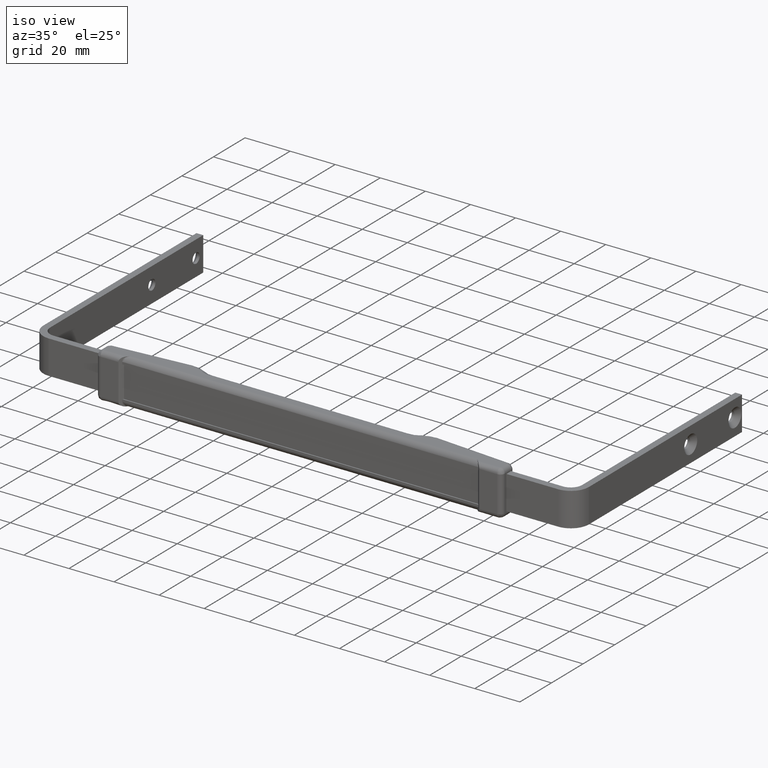
[diagram: clean part render]
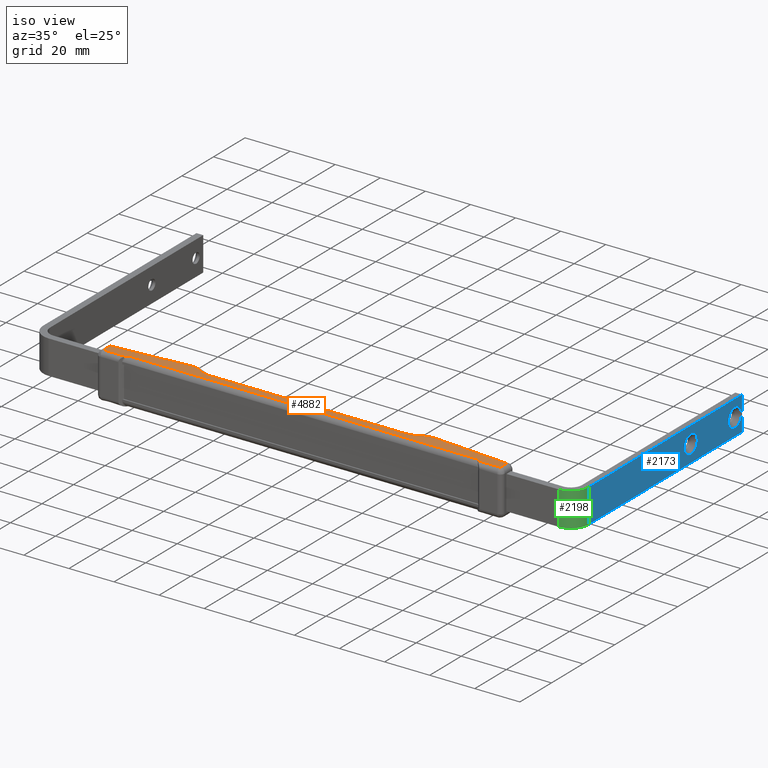
[diagram: same view with three faces highlighted in distinct colors, each labeled with its STEP entity id]
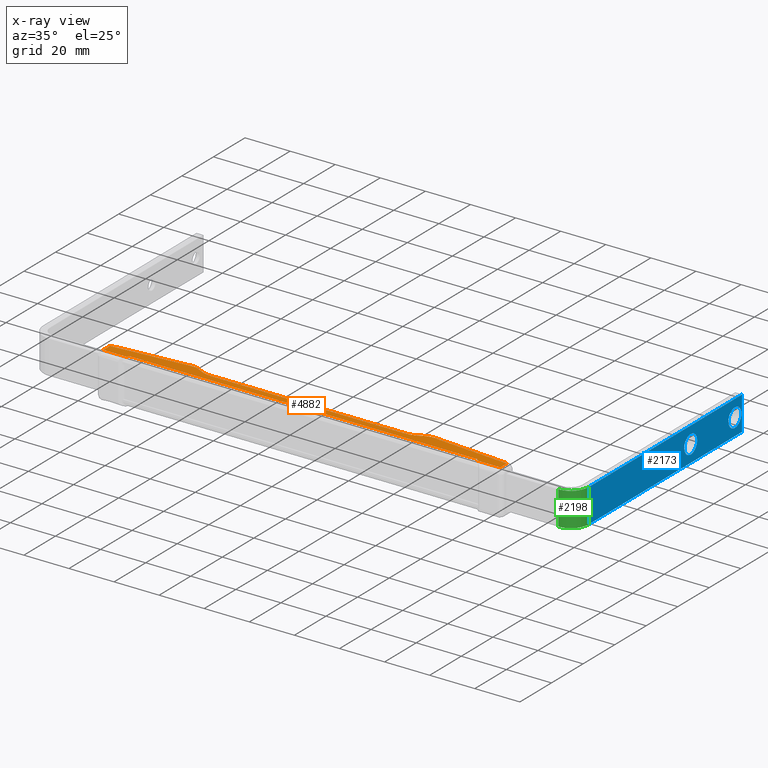
[diagram: x-ray of the same camera — body ghosted, the three highlighted faces saturated]
A machine part, iso view with three faces highlighted in distinct colors.
The next image is the same camera in x-ray (body ghosted, the three faces saturated) — at least one of them is partly hidden behind the body in this view.
Their STEP definitions:

[orange] entity #4882 — the highlighted face is a freeform B-spline surface patch.
#2739=CARTESIAN_POINT('',(88.0,10.0,1.0));
#2740=VERTEX_POINT('',#2739);
#2846=CARTESIAN_POINT('',(88.0,10.0,-3.158406513341575));
#2847=VERTEX_POINT('',#2846);
#2861=CARTESIAN_POINT('',(88.0,10.0,1.0));
#2862=CARTESIAN_POINT('',(88.0,10.0,-3.158406513341575));
#2863=QUASI_UNIFORM_CURVE('',1,(#2861,#2862),.UNSPECIFIED.,.F.,.U.);
#2864=EDGE_CURVE('',#2740,#2847,#2863,.T.);
#3303=CARTESIAN_POINT('',(-88.0,10.0,1.0));
#3304=VERTEX_POINT('',#3303);
#3405=CARTESIAN_POINT('',(-88.0,10.0,-3.158406513341575));
#3406=VERTEX_POINT('',#3405);
#3428=CARTESIAN_POINT('',(-88.0,10.0,-3.158406513341575));
#3429=CARTESIAN_POINT('',(-88.0,10.0,1.0));
#3430=QUASI_UNIFORM_CURVE('',1,(#3428,#3429),.UNSPECIFIED.,.F.,.U.);
#3431=EDGE_CURVE('',#3406,#3304,#3430,.T.);
#3580=CARTESIAN_POINT('',(-78.0,10.0,1.0));
#3581=VERTEX_POINT('',#3580);
#3582=CARTESIAN_POINT('',(-88.0,10.0,1.0));
#3583=CARTESIAN_POINT('',(-78.0,10.0,1.0));
#3584=QUASI_UNIFORM_CURVE('',1,(#3582,#3583),.UNSPECIFIED.,.F.,.U.);
#3585=EDGE_CURVE('',#3304,#3581,#3584,.T.);
#3633=CARTESIAN_POINT('',(78.0,10.0,1.0));
#3634=VERTEX_POINT('',#3633);
#3635=CARTESIAN_POINT('',(78.0,10.0,1.0));
#3636=CARTESIAN_POINT('',(88.0,10.0,1.0));
#3637=QUASI_UNIFORM_CURVE('',1,(#3635,#3636),.UNSPECIFIED.,.F.,.U.);
#3638=EDGE_CURVE('',#3634,#2740,#3637,.T.);
#4098=CARTESIAN_POINT('',(-54.054979128314798,10.0,-5.972647401706170));
#4099=VERTEX_POINT('',#4098);
#4100=CARTESIAN_POINT('',(-54.054979128314798,10.0,-5.972647401706170));
#4101=CARTESIAN_POINT('',(-88.0,10.0,-3.158406513341575));
#4102=QUASI_UNIFORM_CURVE('',1,(#4100,#4101),.UNSPECIFIED.,.F.,.U.);
#4103=EDGE_CURVE('',#4099,#3406,#4102,.T.);
#4138=CARTESIAN_POINT('',(-49.179738498858903,10.0,-4.800000000000000));
#4139=VERTEX_POINT('',#4138);
#4169=CARTESIAN_POINT('',(-49.179738498858903,10.0,-4.800000000000000));
#4170=CARTESIAN_POINT('',(-51.423861395643890,10.0,-6.190782459963266));
#4171=CARTESIAN_POINT('',(-54.054979128314798,10.0,-5.972647401706174));
#4179=(BOUNDED_CURVE()B_SPLINE_CURVE(2,(#4169,#4170,#4171),.UNSPECIFIED.,.F.,.U.)CURVE()GEOMETRIC_REPRESENTATION_ITEM()QUASI_UNIFORM_CURVE()RATIONAL_B_SPLINE_CURVE((1.0,0.949623541520563,1.0))REPRESENTATION_ITEM(''));
#4180=EDGE_CURVE('',#4139,#4099,#4179,.T.);
#4202=CARTESIAN_POINT('',(-42.858346247147253,10.0,-3.0));
#4203=VERTEX_POINT('',#4202);
#4233=CARTESIAN_POINT('',(-42.858346247147253,10.0,-2.999999999999999));
#4234=CARTESIAN_POINT('',(-46.275315031856259,10.0,-3.000000000000000));
#4235=CARTESIAN_POINT('',(-49.179738498858903,10.0,-4.800000000000003));
#4243=(BOUNDED_CURVE()B_SPLINE_CURVE(2,(#4233,#4234,#4235),.UNSPECIFIED.,.F.,.U.)CURVE()GEOMETRIC_REPRESENTATION_ITEM()QUASI_UNIFORM_CURVE()RATIONAL_B_SPLINE_CURVE((1.0,0.961769203083567,1.0))REPRESENTATION_ITEM(''));
#4244=EDGE_CURVE('',#4203,#4139,#4243,.T.);
#4263=CARTESIAN_POINT('',(42.858346247147253,10.0,-3.0));
#4264=VERTEX_POINT('',#4263);
#4286=CARTESIAN_POINT('',(42.858346247147253,10.0,-3.0));
#4287=CARTESIAN_POINT('',(-42.858346247147253,10.0,-3.0));
#4288=QUASI_UNIFORM_CURVE('',1,(#4286,#4287),.UNSPECIFIED.,.F.,.U.);
#4289=EDGE_CURVE('',#4264,#4203,#4288,.T.);
#4311=CARTESIAN_POINT('',(49.179738498858903,10.0,-4.800000000000000));
#4312=VERTEX_POINT('',#4311);
#4342=CARTESIAN_POINT('',(49.179738498858903,10.0,-4.800000000000004));
#4343=CARTESIAN_POINT('',(46.275315031856252,10.0,-2.999999999999999));
#4344=CARTESIAN_POINT('',(42.858346247147253,10.0,-2.999999999999999));
#4352=(BOUNDED_CURVE()B_SPLINE_CURVE(2,(#4342,#4343,#4344),.UNSPECIFIED.,.F.,.U.)CURVE()GEOMETRIC_REPRESENTATION_ITEM()QUASI_UNIFORM_CURVE()RATIONAL_B_SPLINE_CURVE((1.0,0.961769203083567,1.0))REPRESENTATION_ITEM(''));
#4353=EDGE_CURVE('',#4312,#4264,#4352,.T.);
#4375=CARTESIAN_POINT('',(54.054979128314898,10.0,-5.972647401706170));
#4376=VERTEX_POINT('',#4375);
#4406=CARTESIAN_POINT('',(54.054979128314898,10.0,-5.972647401706166));
#4407=CARTESIAN_POINT('',(51.423861395643932,10.0,-6.190782459963296));
#4408=CARTESIAN_POINT('',(49.179738498858903,10.0,-4.800000000000001));
#4416=(BOUNDED_CURVE()B_SPLINE_CURVE(2,(#4406,#4407,#4408),.UNSPECIFIED.,.F.,.U.)CURVE()GEOMETRIC_REPRESENTATION_ITEM()QUASI_UNIFORM_CURVE()RATIONAL_B_SPLINE_CURVE((1.0,0.949623541520561,1.0))REPRESENTATION_ITEM(''));
#4417=EDGE_CURVE('',#4376,#4312,#4416,.T.);
#4436=CARTESIAN_POINT('',(88.0,10.0,-3.158406513341575));
#4437=CARTESIAN_POINT('',(54.054979128314898,10.0,-5.972647401706170));
#4438=QUASI_UNIFORM_CURVE('',1,(#4436,#4437),.UNSPECIFIED.,.F.,.U.);
#4439=EDGE_CURVE('',#2847,#4376,#4438,.T.);
#4620=CARTESIAN_POINT('',(77.0,10.0,6.938894E-015));
#4621=VERTEX_POINT('',#4620);
#4637=CARTESIAN_POINT('',(-77.0,10.0,0.0));
#4638=VERTEX_POINT('',#4637);
#4639=CARTESIAN_POINT('',(-77.0,10.0,0.0));
#4640=CARTESIAN_POINT('',(77.0,10.0,6.938894E-015));
#4641=QUASI_UNIFORM_CURVE('',1,(#4639,#4640),.UNSPECIFIED.,.F.,.U.);
#4642=EDGE_CURVE('',#4638,#4621,#4641,.T.);
#4672=CARTESIAN_POINT('',(-78.0,10.0,1.0));
#4673=CARTESIAN_POINT('',(-77.0,10.0,0.0));
#4674=QUASI_UNIFORM_CURVE('',1,(#4672,#4673),.UNSPECIFIED.,.F.,.U.);
#4675=EDGE_CURVE('',#3581,#4638,#4674,.T.);
#4744=CARTESIAN_POINT('',(77.0,10.0,6.938894E-015));
#4745=CARTESIAN_POINT('',(78.0,10.0,1.0));
#4746=QUASI_UNIFORM_CURVE('',1,(#4744,#4745),.UNSPECIFIED.,.F.,.U.);
#4747=EDGE_CURVE('',#4621,#3634,#4746,.T.);
#4861=CARTESIAN_POINT('',(-96.791199658877844,10.0,1.349648926836504));
#4862=CARTESIAN_POINT('',(96.791204379565713,10.0,1.349648926836504));
#4863=CARTESIAN_POINT('',(-96.791199658877844,10.0,-6.349627901411511));
#4864=CARTESIAN_POINT('',(96.791204379565698,10.0,-6.349627901411511));
#4865=B_SPLINE_SURFACE_WITH_KNOTS('',1,1,((#4861,#4863),(#4862,#4864)),.UNSPECIFIED.,.F.,.F.,.U.,(2,2),(2,2),(0.0,193.582404038443510),(0.0,7.699276828248014),.UNSPECIFIED.);
#4866=ORIENTED_EDGE('',*,*,#4103,.T.);
#4867=ORIENTED_EDGE('',*,*,#3431,.T.);
#4868=ORIENTED_EDGE('',*,*,#3585,.T.);
#4869=ORIENTED_EDGE('',*,*,#4675,.T.);
#4870=ORIENTED_EDGE('',*,*,#4642,.T.);
#4871=ORIENTED_EDGE('',*,*,#4747,.T.);
#4872=ORIENTED_EDGE('',*,*,#3638,.T.);
#4873=ORIENTED_EDGE('',*,*,#2864,.T.);
#4874=ORIENTED_EDGE('',*,*,#4439,.T.);
#4875=ORIENTED_EDGE('',*,*,#4417,.T.);
#4876=ORIENTED_EDGE('',*,*,#4353,.T.);
#4877=ORIENTED_EDGE('',*,*,#4289,.T.);
#4878=ORIENTED_EDGE('',*,*,#4244,.T.);
#4879=ORIENTED_EDGE('',*,*,#4180,.T.);
#4880=EDGE_LOOP('',(#4866,#4867,#4868,#4869,#4870,#4871,#4872,#4873,#4874,#4875,#4876,#4877,#4878,#4879));
#4881=FACE_OUTER_BOUND('',#4880,.T.);
#4882=ADVANCED_FACE('',(#4881),#4865,.T.);

[blue] entity #2173 — the highlighted face is a freeform B-spline surface patch.
#1105=CARTESIAN_POINT('',(121.000000000105500,2.205188254828935,-103.956464199384900));
#1106=VERTEX_POINT('',#1105);
#1112=CARTESIAN_POINT('',(121.0,0.0,-96.400000000000006));
#1113=VERTEX_POINT('',#1112);
#1114=CARTESIAN_POINT('',(121.0,0.0,-96.400000000000006));
#1115=CARTESIAN_POINT('',(121.0,4.100000000000001,-96.400000000000006));
#1116=CARTESIAN_POINT('',(121.0,4.100000000000001,-100.500000000000000));
#1117=CARTESIAN_POINT('',(121.0,4.100000000000001,-102.747593987126110));
#1118=CARTESIAN_POINT('',(121.000000000105460,2.205188254828936,-103.956464199384900));
#1126=(BOUNDED_CURVE()B_SPLINE_CURVE(2,(#1114,#1115,#1116,#1117,#1118),.UNSPECIFIED.,.F.,.U.)B_SPLINE_CURVE_WITH_KNOTS((3,2,3),(0.0,0.250000000000000,0.407950112482433),.UNSPECIFIED.)CURVE()GEOMETRIC_REPRESENTATION_ITEM()RATIONAL_B_SPLINE_CURVE((1.0,0.707106781186547,1.0,0.814949932572294,0.863729296865291))REPRESENTATION_ITEM(''));
#1127=EDGE_CURVE('',#1113,#1106,#1126,.T.);
#1129=CARTESIAN_POINT('',(121.000000000612200,-4.087361068551974,-100.821682297158800));
#1130=VERTEX_POINT('',#1129);
#1131=CARTESIAN_POINT('',(121.000000000612190,-4.087361068551974,-100.821682297158840));
#1132=CARTESIAN_POINT('',(120.999999999999970,-4.100000000000001,-100.661089443379570));
#1133=CARTESIAN_POINT('',(121.0,-4.100000000000001,-100.500000000000000));
#1134=CARTESIAN_POINT('',(121.0,-4.100000000000001,-96.400000000000006));
#1135=CARTESIAN_POINT('',(121.0,0.0,-96.400000000000006));
#1143=(BOUNDED_CURVE()B_SPLINE_CURVE(2,(#1131,#1132,#1133,#1134,#1135),.UNSPECIFIED.,.F.,.U.)B_SPLINE_CURVE_WITH_KNOTS((3,2,3),(0.736331300244682,0.750000000000000,1.0),.UNSPECIFIED.)CURVE()GEOMETRIC_REPRESENTATION_ITEM()RATIONAL_B_SPLINE_CURVE((0.969723355361912,0.983986122126681,1.0,0.707106781186547,1.0))REPRESENTATION_ITEM(''));
#1144=EDGE_CURVE('',#1130,#1113,#1143,.T.);
#1248=CARTESIAN_POINT('',(121.0,0.0,-104.599999999999990));
#1249=VERTEX_POINT('',#1248);
#1250=CARTESIAN_POINT('',(121.0,0.0,-104.599999999999990));
#1251=CARTESIAN_POINT('',(121.000000000000010,-3.790001007192028,-104.600000000000020));
#1252=CARTESIAN_POINT('',(121.000000000612190,-4.087361068551974,-100.821682297158840));
#1260=(BOUNDED_CURVE()B_SPLINE_CURVE(2,(#1250,#1251,#1252),.UNSPECIFIED.,.F.,.U.)B_SPLINE_CURVE_WITH_KNOTS((3,3),(0.500000000000000,0.736331300244683),.UNSPECIFIED.)CURVE()GEOMETRIC_REPRESENTATION_ITEM()RATIONAL_B_SPLINE_CURVE((1.0,0.723120659059865,0.969723355361914))REPRESENTATION_ITEM(''));
#1261=EDGE_CURVE('',#1249,#1130,#1260,.T.);
#1263=CARTESIAN_POINT('',(121.000000000105430,2.205188254828935,-103.956464199384900));
#1264=CARTESIAN_POINT('',(121.000000000000070,1.196495029169570,-104.600000000000020));
#1265=CARTESIAN_POINT('',(121.0,0.0,-104.599999999999990));
#1273=(BOUNDED_CURVE()B_SPLINE_CURVE(2,(#1263,#1264,#1265),.UNSPECIFIED.,.F.,.U.)B_SPLINE_CURVE_WITH_KNOTS((3,3),(0.407950112482433,0.500000000000000),.UNSPECIFIED.)CURVE()GEOMETRIC_REPRESENTATION_ITEM()RATIONAL_B_SPLINE_CURVE((0.863729296865291,0.892156848614254,1.0))REPRESENTATION_ITEM(''));
#1274=EDGE_CURVE('',#1106,#1249,#1273,.T.);
#1449=CARTESIAN_POINT('',(121.000000000105500,2.205188254828923,-75.956464199384882));
#1450=VERTEX_POINT('',#1449);
#1456=CARTESIAN_POINT('',(121.0,0.0,-68.399999999999991));
#1457=VERTEX_POINT('',#1456);
#1458=CARTESIAN_POINT('',(121.0,0.0,-68.399999999999991));
#1459=CARTESIAN_POINT('',(121.0,4.100000000000001,-68.399999999999991));
#1460=CARTESIAN_POINT('',(121.0,4.100000000000001,-72.500000000000000));
#1461=CARTESIAN_POINT('',(120.999999999999990,4.100000000000001,-74.747593987126109));
#1462=CARTESIAN_POINT('',(121.000000000105500,2.205188254828923,-75.956464199384882));
#1470=(BOUNDED_CURVE()B_SPLINE_CURVE(2,(#1458,#1459,#1460,#1461,#1462),.UNSPECIFIED.,.F.,.U.)B_SPLINE_CURVE_WITH_KNOTS((3,2,3),(0.0,0.250000000000000,0.407950112482434),.UNSPECIFIED.)CURVE()GEOMETRIC_REPRESENTATION_ITEM()RATIONAL_B_SPLINE_CURVE((1.0,0.707106781186547,1.0,0.814949932572293,0.863729296865292))REPRESENTATION_ITEM(''));
#1471=EDGE_CURVE('',#1457,#1450,#1470,.T.);
#1473=CARTESIAN_POINT('',(121.000000000612200,-4.087361068551974,-72.821682297158844));
#1474=VERTEX_POINT('',#1473);
#1475=CARTESIAN_POINT('',(121.000000000612190,-4.087361068551974,-72.821682297158844));
#1476=CARTESIAN_POINT('',(120.999999999999970,-4.100000000000001,-72.661089443379566));
#1477=CARTESIAN_POINT('',(121.0,-4.100000000000001,-72.500000000000000));
#1478=CARTESIAN_POINT('',(121.0,-4.100000000000001,-68.399999999999991));
#1479=CARTESIAN_POINT('',(121.0,0.0,-68.399999999999991));
#1487=(BOUNDED_CURVE()B_SPLINE_CURVE(2,(#1475,#1476,#1477,#1478,#1479),.UNSPECIFIED.,.F.,.U.)B_SPLINE_CURVE_WITH_KNOTS((3,2,3),(0.736331300244682,0.750000000000000,1.0),.UNSPECIFIED.)CURVE()GEOMETRIC_REPRESENTATION_ITEM()RATIONAL_B_SPLINE_CURVE((0.969723355361912,0.983986122126681,1.0,0.707106781186547,1.0))REPRESENTATION_ITEM(''));
#1488=EDGE_CURVE('',#1474,#1457,#1487,.T.);
#1592=CARTESIAN_POINT('',(121.0,0.0,-76.599999999999994));
#1593=VERTEX_POINT('',#1592);
#1594=CARTESIAN_POINT('',(121.0,0.0,-76.599999999999994));
#1595=CARTESIAN_POINT('',(121.000000000000010,-3.790001007192028,-76.599999999999994));
#1596=CARTESIAN_POINT('',(121.000000000612190,-4.087361068551974,-72.821682297158844));
#1604=(BOUNDED_CURVE()B_SPLINE_CURVE(2,(#1594,#1595,#1596),.UNSPECIFIED.,.F.,.U.)B_SPLINE_CURVE_WITH_KNOTS((3,3),(0.500000000000000,0.736331300244683),.UNSPECIFIED.)CURVE()GEOMETRIC_REPRESENTATION_ITEM()RATIONAL_B_SPLINE_CURVE((1.0,0.723120659059865,0.969723355361914))REPRESENTATION_ITEM(''));
#1605=EDGE_CURVE('',#1593,#1474,#1604,.T.);
#1607=CARTESIAN_POINT('',(121.000000000105500,2.205188254828923,-75.956464199384882));
#1608=CARTESIAN_POINT('',(120.999999999999970,1.196495029169560,-76.599999999999994));
#1609=CARTESIAN_POINT('',(121.0,0.0,-76.599999999999994));
#1617=(BOUNDED_CURVE()B_SPLINE_CURVE(2,(#1607,#1608,#1609),.UNSPECIFIED.,.F.,.U.)B_SPLINE_CURVE_WITH_KNOTS((3,3),(0.407950112482434,0.500000000000000),.UNSPECIFIED.)CURVE()GEOMETRIC_REPRESENTATION_ITEM()RATIONAL_B_SPLINE_CURVE((0.863729296865292,0.892156848614255,1.0))REPRESENTATION_ITEM(''));
#1618=EDGE_CURVE('',#1450,#1593,#1617,.T.);
#1824=CARTESIAN_POINT('',(121.0,-7.500000000000000,-105.0));
#1825=VERTEX_POINT('',#1824);
#1831=CARTESIAN_POINT('',(121.0,-7.500000000000000,-8.0));
#1832=VERTEX_POINT('',#1831);
#1833=CARTESIAN_POINT('',(121.0,-7.500000000000000,-8.0));
#1834=CARTESIAN_POINT('',(121.0,-7.500000000000000,-105.0));
#1835=QUASI_UNIFORM_CURVE('',1,(#1833,#1834),.UNSPECIFIED.,.F.,.U.);
#1836=EDGE_CURVE('',#1832,#1825,#1835,.T.);
#1912=CARTESIAN_POINT('',(121.0,7.499999999999840,-8.0));
#1913=VERTEX_POINT('',#1912);
#1927=CARTESIAN_POINT('',(121.0,7.499999999999840,-105.0));
#1928=VERTEX_POINT('',#1927);
#1929=CARTESIAN_POINT('',(121.0,7.499999999999840,-8.0));
#1930=CARTESIAN_POINT('',(121.0,7.499999999999840,-105.0));
#1931=QUASI_UNIFORM_CURVE('',1,(#1929,#1930),.UNSPECIFIED.,.F.,.U.);
#1932=EDGE_CURVE('',#1913,#1928,#1931,.T.);
#2138=CARTESIAN_POINT('',(121.0,7.499999999999840,-105.0));
#2139=CARTESIAN_POINT('',(121.0,-7.500000000000000,-105.0));
#2140=QUASI_UNIFORM_CURVE('',1,(#2138,#2139),.UNSPECIFIED.,.F.,.U.);
#2141=EDGE_CURVE('',#1928,#1825,#2140,.T.);
#2146=CARTESIAN_POINT('',(121.0,-8.249249970927082,-109.845149811995200));
#2147=CARTESIAN_POINT('',(121.0,-8.249249970927082,-3.154847586262082));
#2148=CARTESIAN_POINT('',(121.0,8.249250373258272,-109.845149811995200));
#2149=CARTESIAN_POINT('',(121.0,8.249250373258272,-3.154847586262082));
#2150=B_SPLINE_SURFACE_WITH_KNOTS('',1,1,((#2146,#2148),(#2147,#2149)),.UNSPECIFIED.,.F.,.F.,.U.,(2,2),(2,2),(0.0,106.690302225733110),(0.0,16.498500344185349),.UNSPECIFIED.);
#2151=ORIENTED_EDGE('',*,*,#1836,.T.);
#2152=ORIENTED_EDGE('',*,*,#2141,.F.);
#2153=ORIENTED_EDGE('',*,*,#1932,.F.);
#2154=CARTESIAN_POINT('',(121.0,7.499999999999840,-8.0));
#2155=CARTESIAN_POINT('',(121.0,-7.500000000000000,-8.0));
#2156=QUASI_UNIFORM_CURVE('',1,(#2154,#2155),.UNSPECIFIED.,.F.,.U.);
#2157=EDGE_CURVE('',#1913,#1832,#2156,.T.);
#2158=ORIENTED_EDGE('',*,*,#2157,.T.);
#2159=EDGE_LOOP('',(#2151,#2152,#2153,#2158));
#2160=FACE_OUTER_BOUND('',#2159,.T.);
#2161=ORIENTED_EDGE('',*,*,#1605,.T.);
#2162=ORIENTED_EDGE('',*,*,#1488,.T.);
#2163=ORIENTED_EDGE('',*,*,#1471,.T.);
#2164=ORIENTED_EDGE('',*,*,#1618,.T.);
#2165=EDGE_LOOP('',(#2161,#2162,#2163,#2164));
#2166=FACE_BOUND('',#2165,.T.);
#2167=ORIENTED_EDGE('',*,*,#1261,.T.);
#2168=ORIENTED_EDGE('',*,*,#1144,.T.);
#2169=ORIENTED_EDGE('',*,*,#1127,.T.);
#2170=ORIENTED_EDGE('',*,*,#1274,.T.);
#2171=EDGE_LOOP('',(#2167,#2168,#2169,#2170));
#2172=FACE_BOUND('',#2171,.T.);
#2173=ADVANCED_FACE('',(#2160,#2166,#2172),#2150,.F.);

[green] entity #2198 — the highlighted face is a freeform B-spline surface patch.
#1831=CARTESIAN_POINT('',(121.0,-7.500000000000000,-8.0));
#1832=VERTEX_POINT('',#1831);
#1838=CARTESIAN_POINT('',(113.0,-7.500000000000000,0.0));
#1839=VERTEX_POINT('',#1838);
#1840=CARTESIAN_POINT('',(121.0,-7.500000000000000,-8.0));
#1841=CARTESIAN_POINT('',(121.0,-7.500000000000000,0.0));
#1842=CARTESIAN_POINT('',(113.0,-7.500000000000000,0.0));
#1850=(BOUNDED_CURVE()B_SPLINE_CURVE(2,(#1840,#1841,#1842),.UNSPECIFIED.,.F.,.U.)CURVE()GEOMETRIC_REPRESENTATION_ITEM()QUASI_UNIFORM_CURVE()RATIONAL_B_SPLINE_CURVE((1.0,0.707106781186548,1.0))REPRESENTATION_ITEM(''));
#1851=EDGE_CURVE('',#1832,#1839,#1850,.T.);
#1905=CARTESIAN_POINT('',(113.0,7.499999999999840,0.0));
#1906=VERTEX_POINT('',#1905);
#1912=CARTESIAN_POINT('',(121.0,7.499999999999840,-8.0));
#1913=VERTEX_POINT('',#1912);
#1914=CARTESIAN_POINT('',(121.0,7.499999999999840,-8.0));
#1915=CARTESIAN_POINT('',(121.0,7.499999999999840,0.0));
#1916=CARTESIAN_POINT('',(113.0,7.499999999999840,0.0));
#1924=(BOUNDED_CURVE()B_SPLINE_CURVE(2,(#1914,#1915,#1916),.UNSPECIFIED.,.F.,.U.)CURVE()GEOMETRIC_REPRESENTATION_ITEM()QUASI_UNIFORM_CURVE()RATIONAL_B_SPLINE_CURVE((1.0,0.707106781186548,1.0))REPRESENTATION_ITEM(''));
#1925=EDGE_CURVE('',#1913,#1906,#1924,.T.);
#2154=CARTESIAN_POINT('',(121.0,7.499999999999840,-8.0));
#2155=CARTESIAN_POINT('',(121.0,-7.500000000000000,-8.0));
#2156=QUASI_UNIFORM_CURVE('',1,(#2154,#2155),.UNSPECIFIED.,.F.,.U.);
#2157=EDGE_CURVE('',#1913,#1832,#2156,.T.);
#2174=CARTESIAN_POINT('',(112.930187716012990,7.874999999999838,-0.000304615486632));
#2175=CARTESIAN_POINT('',(112.930187716012990,-7.884374999999997,-0.000304615486632));
#2176=CARTESIAN_POINT('',(121.508810736093990,7.874999999999837,0.074559893436378));
#2177=CARTESIAN_POINT('',(121.508810736093990,-7.884374999999995,0.074559893436378));
#2178=CARTESIAN_POINT('',(120.985078387374900,7.874999999999838,-8.488388316278844));
#2179=CARTESIAN_POINT('',(120.985078387374900,-7.884374999999997,-8.488388316278844));
#2187=(BOUNDED_SURFACE()B_SPLINE_SURFACE(1,2,((#2174,#2176,#2178),(#2175,#2177,#2179)),.UNSPECIFIED.,.F.,.F.,.U.)B_SPLINE_SURFACE_WITH_KNOTS((2,2),(3,3),(0.0,15.759374999999840),(0.0,13.913995998749870),.UNSPECIFIED.)GEOMETRIC_REPRESENTATION_ITEM()RATIONAL_B_SPLINE_SURFACE(((1.0,0.681998360062499,1.0),(1.0,0.681998360062499,1.0)))REPRESENTATION_ITEM('')SURFACE());
#2188=ORIENTED_EDGE('',*,*,#1851,.F.);
#2189=ORIENTED_EDGE('',*,*,#2157,.F.);
#2190=ORIENTED_EDGE('',*,*,#1925,.T.);
#2191=CARTESIAN_POINT('',(113.0,7.499999999999840,0.0));
#2192=CARTESIAN_POINT('',(113.0,-7.500000000000000,0.0));
#2193=QUASI_UNIFORM_CURVE('',1,(#2191,#2192),.UNSPECIFIED.,.F.,.U.);
#2194=EDGE_CURVE('',#1906,#1839,#2193,.T.);
#2195=ORIENTED_EDGE('',*,*,#2194,.T.);
#2196=EDGE_LOOP('',(#2188,#2189,#2190,#2195));
#2197=FACE_OUTER_BOUND('',#2196,.T.);
#2198=ADVANCED_FACE('',(#2197),#2187,.T.);